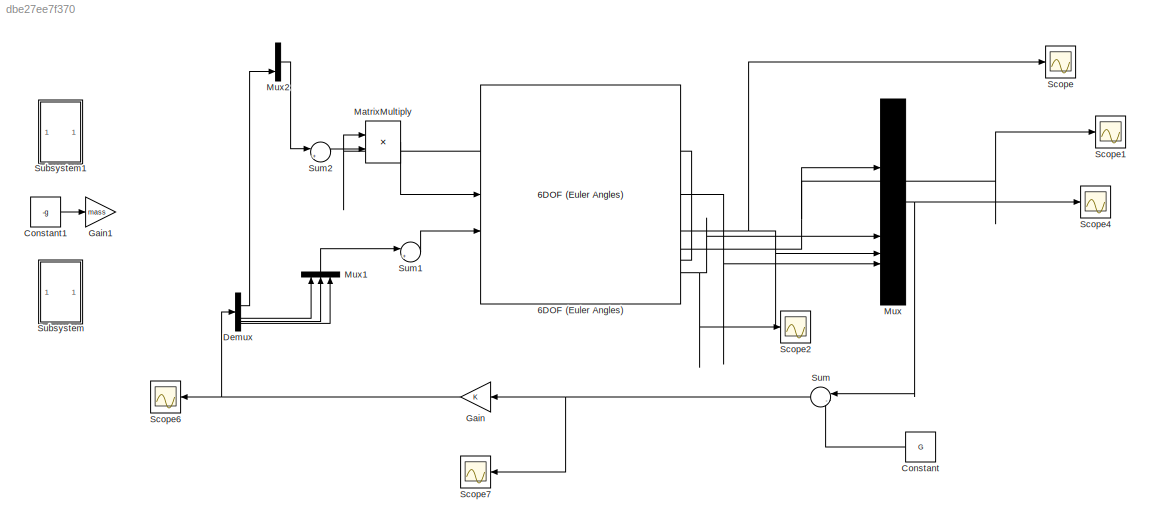
MODEL slx_dbe27ee7f370
KIND model
CONFIG AbsTol = auto
CONFIG EnableMultiTasking = off
CONFIG FixedStep = auto
CONFIG MaxStep = auto
CONFIG MinStep = auto
CONFIG RelTol = 1e-3
CONFIG SampleTimeConstraint = Unconstrained
CONFIG SolverName = VariableStepAuto
CONFIG StartTime = 0.0
CONFIG StopTime = 300
BLOCK [Reference] 6DOF (Euler Angles)  REF=shared6dof/6DOF (Euler Angles)
  LibrarySourceBlock = aerolib6dof2/6DOF (Euler Angles)
  SourceBlock = shared6dof/6DOF (Euler Angles)
  SourceType = 6DOF EoM (Body Axis)
BLOCK [Constant] Constant
  NameLocation = top
  Value = G
BLOCK [Constant] Constant1
  Value = -g
BLOCK [Demux] Demux
BLOCK [Gain] Gain
  Gain = K
  Multiplication = Matrix(K*u)
  NameLocation = top
BLOCK [Gain] Gain1
  Gain = mass
BLOCK [Product] MatrixMultiply
  Multiplication = Matrix(*)
BLOCK [Mux] Mux
  DisplayOption = bar
BLOCK [Mux] Mux1
  DisplayOption = bar
  Inputs = 3
  NameLocation = right
BLOCK [Mux] Mux2
  DisplayOption = bar
  Inputs = 3
BLOCK [Scope] Scope
  Floating = off
  NumInputPorts = 1
  ScopeSpecificationString = Simulink.scopes.TimeScopeBlockCfg('CurrentConfiguration', extmgr.ConfigurationSet(extmgr.Configuration('Core','General UI',true),extmgr.Configuration('Core','Source UI',true),extmgr.Configuration('Sources','WiredSimulink',true),extmgr.Configuration('Visuals','Time Domain',true,'SerializedDisplays',{struct('MinYLimReal','-0.13975','MaxYLimReal','1.14581','YLabelReal','','MinYLimMag','0.00000','MaxY...<+1566ch>
BLOCK [Scope] Scope1
  Floating = off
  NumInputPorts = 1
  ScopeSpecificationString = Simulink.scopes.TimeScopeBlockCfg('CurrentConfiguration', extmgr.ConfigurationSet(extmgr.Configuration('Core','General UI',true),extmgr.Configuration('Core','Source UI',true),extmgr.Configuration('Sources','WiredSimulink',true,'DataLoggingVariableName','ScopeData1'),extmgr.Configuration('Visuals','Time Domain',true,'SerializedDisplays',{struct('MinYLimReal','-0.05592','MaxYLimReal','0.09897','YLab...<+1576ch>
BLOCK [Scope] Scope2
  Floating = off
  NumInputPorts = 1
  ScopeSpecificationString = Simulink.scopes.TimeScopeBlockCfg('CurrentConfiguration', extmgr.ConfigurationSet(extmgr.Configuration('Core','General UI',true),extmgr.Configuration('Core','Source UI',true),extmgr.Configuration('Sources','WiredSimulink',true,'DataLoggingVariableName','ScopeData1'),extmgr.Configuration('Visuals','Time Domain',true,'SerializedDisplays',{struct('MinYLimReal','-0.00017','MaxYLimReal','0.00015','YLab...<+1550ch>
BLOCK [Scope] Scope4
  Floating = off
  NumInputPorts = 1
  ScopeSpecificationString = Simulink.scopes.TimeScopeBlockCfg('CurrentConfiguration', extmgr.ConfigurationSet(extmgr.Configuration('Core','General UI',true),extmgr.Configuration('Core','Source UI',true),extmgr.Configuration('Sources','WiredSimulink',true,'DataLoggingVariableName','ScopeData4'),extmgr.Configuration('Visuals','Time Domain',true,'SerializedDisplays',{struct('MinYLimReal','-2.05533','MaxYLimReal','3.33613','YLab...<+1972ch>
BLOCK [Scope] Scope6
  Floating = off
  NameLocation = top
  NumInputPorts = 1
  ScopeSpecificationString = Simulink.scopes.TimeScopeBlockCfg('CurrentConfiguration', extmgr.ConfigurationSet(extmgr.Configuration('Core','General UI',true),extmgr.Configuration('Core','Source UI',true),extmgr.Configuration('Sources','WiredSimulink',true,'DataLoggingVariableName','ScopeData6'),extmgr.Configuration('Visuals','Time Domain',true,'SerializedDisplays',{struct('MinYLimReal','-89.33275','MaxYLimReal','361.29005','Y...<+1539ch>
BLOCK [Scope] Scope7
  Floating = off
  NameLocation = top
  NumInputPorts = 1
  ScopeSpecificationString = Simulink.scopes.TimeScopeBlockCfg('CurrentConfiguration', extmgr.ConfigurationSet(extmgr.Configuration('Core','General UI',true),extmgr.Configuration('Core','Source UI',true),extmgr.Configuration('Sources','WiredSimulink',true,'DataLoggingVariableName','ScopeData2'),extmgr.Configuration('Visuals','Time Domain',true,'SerializedDisplays',{struct('MinYLimReal','-3.25469','MaxYLimReal','1.32386','YLab...<+1787ch>
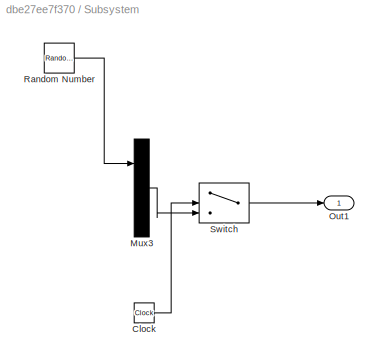
BLOCK [SubSystem] Subsystem
BLOCK [Clock] Subsystem/Clock
BLOCK [Mux] Subsystem/Mux3
  DisplayOption = bar
  Inputs = 3
BLOCK [Outport] Subsystem/Out1
BLOCK [RandomNumber] Subsystem/Random Number
  SampleTime = 3
  Variance = V
BLOCK [Switch] Subsystem/Switch
  Criteria = u2 > Threshold
  InputSameDT = off
  SaturateOnIntegerOverflow = off
  Threshold = 30
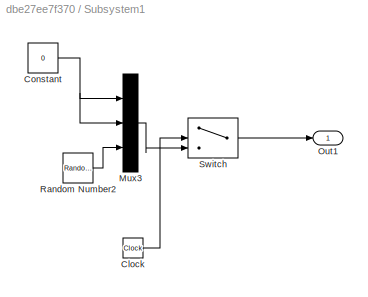
BLOCK [SubSystem] Subsystem1
BLOCK [Clock] Subsystem1/Clock
BLOCK [Constant] Subsystem1/Constant
  Value = 0
BLOCK [Mux] Subsystem1/Mux3
  DisplayOption = bar
  Inputs = 3
BLOCK [Outport] Subsystem1/Out1
BLOCK [RandomNumber] Subsystem1/Random Number2
  SampleTime = 3
  Variance = V
BLOCK [Switch] Subsystem1/Switch
  Criteria = u2 > Threshold
  InputSameDT = off
  SaturateOnIntegerOverflow = off
  Threshold = 20
BLOCK [Sum] Sum
  Inputs = |-+
  NameLocation = top
BLOCK [Sum] Sum1
  Inputs = |++
BLOCK [Sum] Sum2
  Inputs = |++
LINE 6DOF (Euler Angles):1 -> Mux:4
NET 6DOF (Euler Angles):2 -> Mux:3, Scope:1
NET 6DOF (Euler Angles):3 -> Mux:1, Scope1:1
LINE 6DOF (Euler Angles):4 -> MatrixMultiply:1
NET 6DOF (Euler Angles):6 -> Mux:2, Scope2:1
LINE Constant1:1 -> Gain1:1
LINE Constant:1 -> Sum:2
LINE Demux:1 -> Mux2:3
LINE Demux:2 -> Mux1:1
LINE Demux:3 -> Mux1:2
LINE Demux:4 -> Mux1:3
NET Gain:1 -> Demux:1, Scope6:1
LINE MatrixMultiply:1 -> 6DOF (Euler Angles):1
LINE Mux1:1 -> Sum1:1
LINE Mux2:1 -> Sum2:1
NET Mux:1 -> Scope4:1, Sum:1
LINE Subsystem/Clock:1 -> Subsystem/Switch:2
LINE Subsystem/Mux3:1 -> Subsystem/Switch:3
LINE Subsystem/Random Number:1 -> Subsystem/Mux3:1
LINE Subsystem/Switch:1 -> Subsystem/Out1:1
LINE Subsystem1/Clock:1 -> Subsystem1/Switch:2
NET Subsystem1/Constant:1 -> Subsystem1/Mux3:1, Subsystem1/Mux3:2
LINE Subsystem1/Mux3:1 -> Subsystem1/Switch:3
LINE Subsystem1/Random Number2:1 -> Subsystem1/Mux3:3
LINE Subsystem1/Switch:1 -> Subsystem1/Out1:1
LINE Sum1:1 -> 6DOF (Euler Angles):2
LINE Sum2:1 -> MatrixMultiply:2
NET Sum:1 -> Gain:1, Scope7:1
note: NET lines group one-source signal fan-out (src -> all destinations, sorted); 1:1 wires keep LINE
